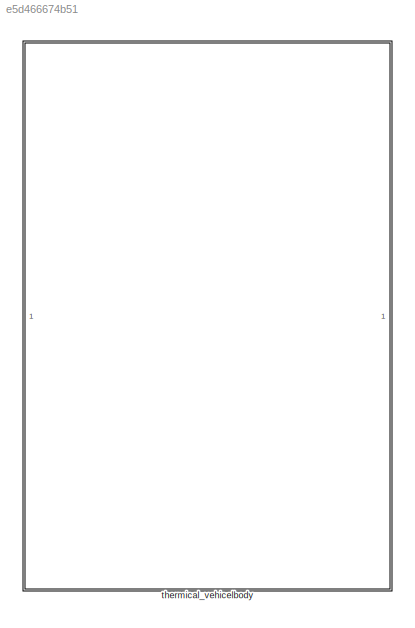
MODEL slx_e5d466674b51
KIND library
CONFIG AbsTol = auto
CONFIG EnableMultiTasking = off
CONFIG FixedStep = auto
CONFIG MaxStep = auto
CONFIG MinStep = auto
CONFIG RelTol = 1e-3
CONFIG SampleTimeConstraint = Unconstrained
CONFIG SolverName = VariableStepAuto
CONFIG StartTime = 0.0
CONFIG StopTime = 10.0
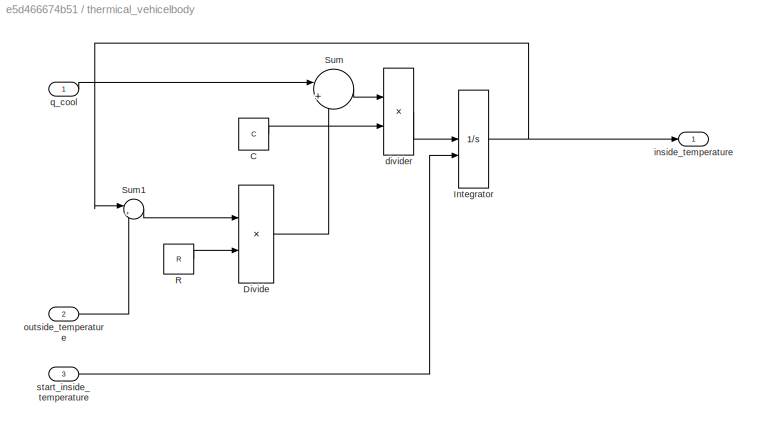
BLOCK [SubSystem] thermical_vehicelbody
BLOCK [Constant] thermical_vehicelbody/C
  Value = C
BLOCK [Product] thermical_vehicelbody/Divide
  Inputs = */
BLOCK [Integrator] thermical_vehicelbody/Integrator
  InitialConditionSource = external
BLOCK [Constant] thermical_vehicelbody/R
  Value = R
BLOCK [Sum] thermical_vehicelbody/Sum
  Inputs = |+-
BLOCK [Sum] thermical_vehicelbody/Sum1
  Inputs = |+-
BLOCK [Product] thermical_vehicelbody/divider
  Inputs = */
BLOCK [Outport] thermical_vehicelbody/inside_temperature
BLOCK [Inport] thermical_vehicelbody/outside_temperature
  Port = 2
BLOCK [Inport] thermical_vehicelbody/q_cool
BLOCK [Inport] thermical_vehicelbody/start_inside_temperature
  Port = 3
LINE thermical_vehicelbody/C:1 -> thermical_vehicelbody/divider:2
LINE thermical_vehicelbody/Divide:1 -> thermical_vehicelbody/Sum:2
NET thermical_vehicelbody/Integrator:1 -> thermical_vehicelbody/Sum1:1, thermical_vehicelbody/inside_temperature:1
LINE thermical_vehicelbody/R:1 -> thermical_vehicelbody/Divide:2
LINE thermical_vehicelbody/Sum1:1 -> thermical_vehicelbody/Divide:1
LINE thermical_vehicelbody/Sum:1 -> thermical_vehicelbody/divider:1
LINE thermical_vehicelbody/divider:1 -> thermical_vehicelbody/Integrator:1
LINE thermical_vehicelbody/outside_temperature:1 -> thermical_vehicelbody/Sum1:2
LINE thermical_vehicelbody/q_cool:1 -> thermical_vehicelbody/Sum:1
LINE thermical_vehicelbody/start_inside_temperature:1 -> thermical_vehicelbody/Integrator:2
note: NET lines group one-source signal fan-out (src -> all destinations, sorted); 1:1 wires keep LINE
